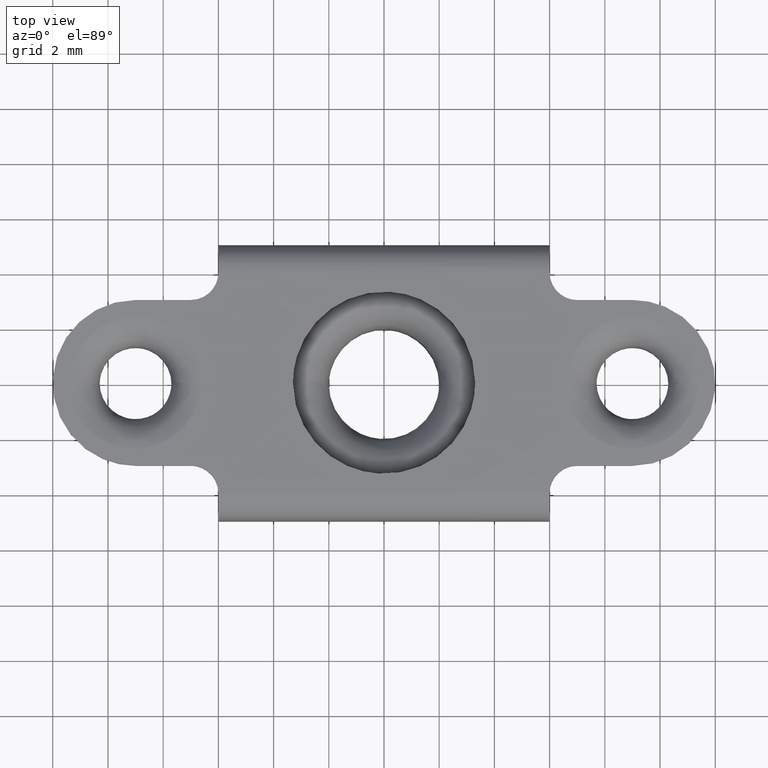
[diagram: clean part render]
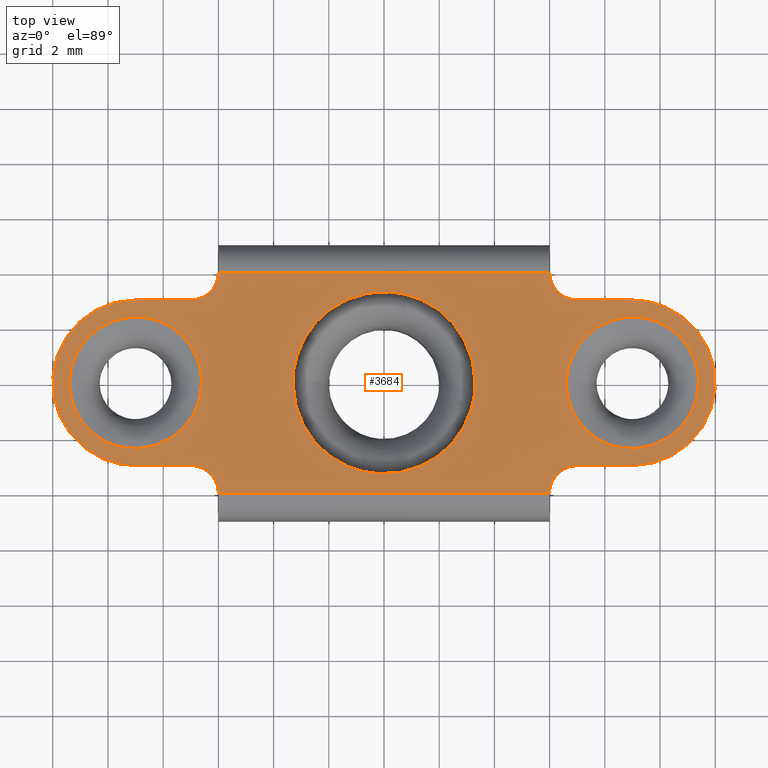
[diagram: same view with one face highlighted and labeled with its STEP entity id]
A machine part, top view. The second image highlights one B-rep face of the part: STEP entity #3684.
In plain terms, the highlighted face is a freeform B-spline surface patch.
Its self-contained STEP definition (entity closure, byte-faithful):
#2180=CARTESIAN_POINT('',(-0.201456841759438,-3.293845038992745,-1.474515E-017));
#2181=VERTEX_POINT('',#2180);
#2187=CARTESIAN_POINT('',(3.300000000000000,0.0,0.0));
#2188=VERTEX_POINT('',#2187);
#2189=CARTESIAN_POINT('',(-0.201456841759438,-3.293845038992746,-1.474515E-017));
#2190=CARTESIAN_POINT('',(-0.100822444851873,-3.299999999998332,-1.453326E-017));
#2191=CARTESIAN_POINT('',(1.003244E-013,-3.299999999998358,-1.430801E-017));
#2192=CARTESIAN_POINT('',(3.300000000000048,-3.299999999999204,-6.935433E-018));
#2193=CARTESIAN_POINT('',(3.300000000000000,0.0,0.0));
#2201=(BOUNDED_CURVE()B_SPLINE_CURVE(2,(#2189,#2190,#2191,#2192,#2193),.UNSPECIFIED.,.F.,.U.)B_SPLINE_CURVE_WITH_KNOTS((3,2,3),(0.239333137138794,0.250000000000000,0.500000000000000),.UNSPECIFIED.)CURVE()GEOMETRIC_REPRESENTATION_ITEM()RATIONAL_B_SPLINE_CURVE((0.976072416510679,0.987502992807759,1.0,0.707106781186548,1.0))REPRESENTATION_ITEM(''));
#2202=EDGE_CURVE('',#2181,#2188,#2201,.T.);
#2204=CARTESIAN_POINT('',(0.201456841759439,3.293845038992745,-1.474515E-017));
#2205=VERTEX_POINT('',#2204);
#2206=CARTESIAN_POINT('',(3.300000000000000,0.0,0.0));
#2207=CARTESIAN_POINT('',(3.299999999999949,3.104333173278948,-7.372575E-018));
#2208=CARTESIAN_POINT('',(0.201456841759439,3.293845038992746,-1.474515E-017));
#2216=(BOUNDED_CURVE()B_SPLINE_CURVE(2,(#2206,#2207,#2208),.UNSPECIFIED.,.F.,.U.)B_SPLINE_CURVE_WITH_KNOTS((3,3),(0.500000000000000,0.739333137138794),.UNSPECIFIED.)CURVE()GEOMETRIC_REPRESENTATION_ITEM()RATIONAL_B_SPLINE_CURVE((1.0,0.719603788378788,0.976072416510679))REPRESENTATION_ITEM(''));
#2217=EDGE_CURVE('',#2188,#2205,#2216,.T.);
#2291=CARTESIAN_POINT('',(-3.300000000000000,0.0,0.0));
#2292=VERTEX_POINT('',#2291);
#2293=CARTESIAN_POINT('',(0.201456841759439,3.293845038992746,-1.474515E-017));
#2294=CARTESIAN_POINT('',(0.100822444851874,3.299999999998332,-1.453326E-017));
#2295=CARTESIAN_POINT('',(-9.989346E-014,3.299999999998358,-1.430801E-017));
#2296=CARTESIAN_POINT('',(-3.300000000000048,3.299999999999204,-6.935433E-018));
#2297=CARTESIAN_POINT('',(-3.300000000000000,0.0,0.0));
#2305=(BOUNDED_CURVE()B_SPLINE_CURVE(2,(#2293,#2294,#2295,#2296,#2297),.UNSPECIFIED.,.F.,.U.)B_SPLINE_CURVE_WITH_KNOTS((3,2,3),(0.739333137138794,0.750000000000000,1.0),.UNSPECIFIED.)CURVE()GEOMETRIC_REPRESENTATION_ITEM()RATIONAL_B_SPLINE_CURVE((0.976072416510679,0.987502992807759,1.0,0.707106781186548,1.0))REPRESENTATION_ITEM(''));
#2306=EDGE_CURVE('',#2205,#2292,#2305,.T.);
#2308=CARTESIAN_POINT('',(-3.300000000000000,0.0,0.0));
#2309=CARTESIAN_POINT('',(-3.299999999999947,-3.104333173278948,-7.372575E-018));
#2310=CARTESIAN_POINT('',(-0.201456841759438,-3.293845038992746,-1.474515E-017));
#2318=(BOUNDED_CURVE()B_SPLINE_CURVE(2,(#2308,#2309,#2310),.UNSPECIFIED.,.F.,.U.)B_SPLINE_CURVE_WITH_KNOTS((3,3),(0.0,0.239333137138794),.UNSPECIFIED.)CURVE()GEOMETRIC_REPRESENTATION_ITEM()RATIONAL_B_SPLINE_CURVE((1.0,0.719603788378788,0.976072416510679))REPRESENTATION_ITEM(''));
#2319=EDGE_CURVE('',#2292,#2181,#2318,.T.);
#2348=CARTESIAN_POINT('',(-6.600192010642517,0.030158751653222,-4.531109E-012));
#2349=VERTEX_POINT('',#2348);
#2365=CARTESIAN_POINT('',(-11.399807912155650,-0.030157747322666,-6.160526E-012));
#2366=VERTEX_POINT('',#2365);
#2380=CARTESIAN_POINT('',(-6.600192010642517,0.030158751653222,-4.531109E-012));
#2381=CARTESIAN_POINT('',(-6.600150175629584,-0.165408385661977,-4.531512E-012));
#2382=CARTESIAN_POINT('',(-6.638643651623883,-0.478271487911905,-4.545247E-012));
#2383=CARTESIAN_POINT('',(-6.791403969808117,-0.944080983299107,-4.598097E-012));
#2384=CARTESIAN_POINT('',(-7.017317355609770,-1.358693511639949,-4.675670E-012));
#2385=CARTESIAN_POINT('',(-7.314678833410711,-1.699742079418912,-4.777340E-012));
#2386=CARTESIAN_POINT('',(-7.618332324565074,-1.947416954601699,-4.880947E-012));
#2387=CARTESIAN_POINT('',(-7.952434903257162,-2.152777208822213,-4.994801E-012));
#2388=CARTESIAN_POINT('',(-8.337761753870371,-2.301812687085866,-5.125922E-012));
#2389=CARTESIAN_POINT('',(-8.713502714437427,-2.372718473303340,-5.253623E-012));
#2390=CARTESIAN_POINT('',(-9.055667267851662,-2.392764655263927,-5.369818E-012));
#2391=CARTESIAN_POINT('',(-9.398005571902393,-2.364602938489676,-5.485969E-012));
#2392=CARTESIAN_POINT('',(-9.797865386015296,-2.266120159244065,-5.621496E-012));
#2393=CARTESIAN_POINT('',(-10.157752293694440,-2.108151567467771,-5.743327E-012));
#2394=CARTESIAN_POINT('',(-10.541690020586771,-1.853248284164708,-5.873116E-012));
#2395=CARTESIAN_POINT('',(-10.857474107746050,-1.542491097073451,-5.979650E-012));
#2396=CARTESIAN_POINT('',(-11.103129477419300,-1.175436128568858,-6.062257E-012));
#2397=CARTESIAN_POINT('',(-11.250169672197130,-0.854539324345202,-6.111488E-012));
#2398=CARTESIAN_POINT('',(-11.363895221494770,-0.479533124456400,-6.149293E-012));
#2399=CARTESIAN_POINT('',(-11.397626271079011,-0.206150915954410,-6.160161E-012));
#2400=CARTESIAN_POINT('',(-11.399807912155650,-0.030157747322666,-6.160526E-012));
#2401=B_SPLINE_CURVE_WITH_KNOTS('',3,(#2380,#2381,#2382,#2383,#2384,#2385,#2386,#2387,#2388,#2389,#2390,#2391,#2392,#2393,#2394,#2395,#2396,#2397,#2398,#2399,#2400),.UNSPECIFIED.,.F.,.U.,(4,1,1,1,1,1,1,1,1,1,1,1,1,1,1,1,1,1,4),(-0.000000038087336,0.586685371512398,0.938709550048737,1.466747486720615,1.994781536362128,2.288132707227289,2.640152916118813,3.168183178666578,3.520206823928977,3.784204514045672,4.194892411301849,4.546925011583410,5.016281978556274,5.368304238465075,5.925672346914411,6.336366425770015,6.688386279590131,6.981742781376743,7.509762331266924),.UNSPECIFIED.);
#2402=EDGE_CURVE('',#2349,#2366,#2401,.T.);
#2431=CARTESIAN_POINT('',(-11.399807912155650,-0.030157747322666,-6.160526E-012));
#2432=CARTESIAN_POINT('',(-11.399819742242700,0.106738825269386,-6.160238E-012));
#2433=CARTESIAN_POINT('',(-11.377992656158870,0.360961851683569,-6.152286E-012));
#2434=CARTESIAN_POINT('',(-11.269116314404251,0.798634090385464,-6.114393E-012));
#2435=CARTESIAN_POINT('',(-11.093513452667009,1.173224866903986,-6.053984E-012));
#2436=CARTESIAN_POINT('',(-10.854372787110091,1.508040496042999,-5.972090E-012));
#2437=CARTESIAN_POINT('',(-10.626351157443169,1.751190506261917,-5.894167E-012));
#2438=CARTESIAN_POINT('',(-10.350177511148910,1.970968075500040,-5.799948E-012));
#2439=CARTESIAN_POINT('',(-10.062021011532570,2.138553582022597,-5.701772E-012));
#2440=CARTESIAN_POINT('',(-9.736282394686432,2.273719726511100,-5.590908E-012));
#2441=CARTESIAN_POINT('',(-9.365214060263558,2.367480375185242,-5.464744E-012));
#2442=CARTESIAN_POINT('',(-8.944044472916284,2.397333714890798,-5.321709E-012));
#2443=CARTESIAN_POINT('',(-8.563463920485150,2.356606343863366,-5.192604E-012));
#2444=CARTESIAN_POINT('',(-8.222075183290988,2.268050676037066,-5.076904E-012));
#2445=CARTESIAN_POINT('',(-7.949904240166924,2.156482716384256,-4.984750E-012));
#2446=CARTESIAN_POINT('',(-7.676821443611128,2.002943599749996,-4.892376E-012));
#2447=CARTESIAN_POINT('',(-7.447982788972592,1.834165014571002,-4.815054E-012));
#2448=CARTESIAN_POINT('',(-7.186581314403568,1.583217064318870,-4.726854E-012));
#2449=CARTESIAN_POINT('',(-6.966114112531591,1.294131056507252,-4.652630E-012));
#2450=CARTESIAN_POINT('',(-6.794426552142534,0.963449641366111,-4.595054E-012));
#2451=CARTESIAN_POINT('',(-6.649202541767125,0.557588573890245,-4.546622E-012));
#2452=CARTESIAN_POINT('',(-6.602811678170877,0.245269138390881,-4.531540E-012));
#2453=CARTESIAN_POINT('',(-6.600192010642517,0.030158751653222,-4.531109E-012));
#2454=B_SPLINE_CURVE_WITH_KNOTS('',3,(#2431,#2432,#2433,#2434,#2435,#2436,#2437,#2438,#2439,#2440,#2441,#2442,#2443,#2444,#2445,#2446,#2447,#2448,#2449,#2450,#2451,#2452,#2453),.UNSPECIFIED.,.F.,.U.,(4,1,1,1,1,1,1,1,1,1,1,1,1,1,1,1,1,1,1,1,4),(-0.000000038101347,0.410688035940526,0.762707962024198,1.349406742319233,1.642759010162621,1.994781271477025,2.346803663476568,2.698825307904699,2.992180840099727,3.402867456204360,3.842871811771026,4.253562720035629,4.546924407659407,4.898941883220157,5.133620225337396,5.485644481984451,5.749662398651699,6.219024818056659,6.571050006959164,6.864398181111315,7.509761334154720),.UNSPECIFIED.);
#2455=EDGE_CURVE('',#2366,#2349,#2454,.T.);
#2492=CARTESIAN_POINT('',(11.399807989357480,0.030158751653222,-4.531102E-012));
#2493=VERTEX_POINT('',#2492);
#2509=CARTESIAN_POINT('',(6.600192087844351,-0.030157747322666,-6.160510E-012));
#2510=VERTEX_POINT('',#2509);
#2524=CARTESIAN_POINT('',(11.399807989357480,0.030158751653222,-4.531102E-012));
#2525=CARTESIAN_POINT('',(11.399820517946351,-0.106738153144451,-4.531389E-012));
#2526=CARTESIAN_POINT('',(11.377996921649689,-0.360963457554733,-4.539340E-012));
#2527=CARTESIAN_POINT('',(11.288018629776390,-0.722498652870449,-4.570655E-012));
#2528=CARTESIAN_POINT('',(11.124142038961610,-1.121559336176641,-4.627136E-012));
#2529=CARTESIAN_POINT('',(10.885237915652700,-1.483165761889710,-4.709006E-012));
#2530=CARTESIAN_POINT('',(10.541324353615559,-1.832504813951393,-4.826496E-012));
#2531=CARTESIAN_POINT('',(10.186988667869979,-2.081033810969334,-4.947309E-012));
#2532=CARTESIAN_POINT('',(9.792280489484272,-2.256138863776044,-5.081670E-012));
#2533=CARTESIAN_POINT('',(9.422725931126253,-2.354304693633667,-5.207329E-012));
#2534=CARTESIAN_POINT('',(9.022877958160901,-2.397399751062547,-5.343153E-012));
#2535=CARTESIAN_POINT('',(8.581821548256070,-2.366571788588698,-5.492808E-012));
#2536=CARTESIAN_POINT('',(8.164710428839543,-2.252899275643932,-5.634159E-012));
#2537=CARTESIAN_POINT('',(7.845093724116111,-2.103086033079469,-5.742336E-012));
#2538=CARTESIAN_POINT('',(7.579904904732623,-1.936278098160239,-5.832002E-012));
#2539=CARTESIAN_POINT('',(7.344481253135023,-1.744011050830961,-5.911509E-012));
#2540=CARTESIAN_POINT('',(7.085586382096626,-1.462800259707269,-5.998794E-012));
#2541=CARTESIAN_POINT('',(6.887100152378109,-1.158207203660429,-6.065522E-012));
#2542=CARTESIAN_POINT('',(6.744147298576400,-0.835786425875360,-6.113361E-012));
#2543=CARTESIAN_POINT('',(6.636107717935015,-0.479532869498657,-6.149277E-012));
#2544=CARTESIAN_POINT('',(6.602369334052349,-0.206151387894447,-6.160146E-012));
#2545=CARTESIAN_POINT('',(6.600192087844351,-0.030157747322666,-6.160510E-012));
#2546=B_SPLINE_CURVE_WITH_KNOTS('',3,(#2524,#2525,#2526,#2527,#2528,#2529,#2530,#2531,#2532,#2533,#2534,#2535,#2536,#2537,#2538,#2539,#2540,#2541,#2542,#2543,#2544,#2545),.UNSPECIFIED.,.F.,.U.,(4,1,1,1,1,1,1,1,1,1,1,1,1,1,1,1,1,1,1,4),(-0.000000038125453,0.410688090351623,0.762708063156981,1.114729205296134,1.701431011919818,2.053452509770076,2.581486680580021,2.992181237500775,3.344197252358811,3.725554424054393,4.194892411285826,4.664257983655497,5.016281978544666,5.250965654325047,5.602987043826619,5.925672346907250,6.395039221752329,6.688386279586506,6.981742781374463,7.509762331267048),.UNSPECIFIED.);
#2547=EDGE_CURVE('',#2493,#2510,#2546,.T.);
#2582=CARTESIAN_POINT('',(6.600192087844351,-0.030157747322666,-6.160510E-012));
#2583=CARTESIAN_POINT('',(6.600179587439456,0.106738870355552,-6.160222E-012));
#2584=CARTESIAN_POINT('',(6.622009607888787,0.360961369505433,-6.152270E-012));
#2585=CARTESIAN_POINT('',(6.730880205632179,0.798635095760323,-6.114379E-012));
#2586=CARTESIAN_POINT('',(6.914853858477652,1.191061824729860,-6.051090E-012));
#2587=CARTESIAN_POINT('',(7.169817059387417,1.539038504886130,-5.963798E-012));
#2588=CARTESIAN_POINT('',(7.472415359887238,1.846496806609854,-5.860422E-012));
#2589=CARTESIAN_POINT('',(7.862766574985205,2.113273377714289,-5.727344E-012));
#2590=CARTESIAN_POINT('',(8.355219276372532,2.310642943641280,-5.559755E-012));
#2591=CARTESIAN_POINT('',(8.868669576903990,2.401163731639308,-5.385266E-012));
#2592=CARTESIAN_POINT('',(9.350410731503205,2.376352810290735,-5.221787E-012));
#2593=CARTESIAN_POINT('',(9.740737041755532,2.280174192089251,-5.089491E-012));
#2594=CARTESIAN_POINT('',(10.032251105250589,2.164843425641088,-4.990780E-012));
#2595=CARTESIAN_POINT('',(10.341797643133431,1.995813419603404,-4.886062E-012));
#2596=CARTESIAN_POINT('',(10.628972218464050,1.772865856672125,-4.789053E-012));
#2597=CARTESIAN_POINT('',(10.914411031974099,1.462799841821545,-4.692819E-012));
#2598=CARTESIAN_POINT('',(11.134362362578941,1.125278626518163,-4.618874E-012));
#2599=CARTESIAN_POINT('',(11.284602654225170,0.762575529075881,-4.568647E-012));
#2600=CARTESIAN_POINT('',(11.374999905100481,0.401444652395939,-4.538731E-012));
#2601=CARTESIAN_POINT('',(11.398100820304609,0.167039888973427,-4.531389E-012));
#2602=CARTESIAN_POINT('',(11.399807989357480,0.030158751653222,-4.531102E-012));
#2603=B_SPLINE_CURVE_WITH_KNOTS('',3,(#2582,#2583,#2584,#2585,#2586,#2587,#2588,#2589,#2590,#2591,#2592,#2593,#2594,#2595,#2596,#2597,#2598,#2599,#2600,#2601,#2602),.UNSPECIFIED.,.F.,.U.,(4,1,1,1,1,1,1,1,1,1,1,1,1,1,1,1,1,1,4),(-0.000000038133636,0.410688035909781,0.762707961994767,1.349406742292067,1.701430786037149,2.053452237137054,2.640152565389487,3.109515859231629,3.637541941518982,4.194891854366622,4.546924407645888,4.840268378856311,5.133620225326704,5.602986299882413,5.925671560132549,6.395038372647935,6.805725415046360,7.099083697463812,7.509761334154718),.UNSPECIFIED.);
#2604=EDGE_CURVE('',#2510,#2493,#2603,.T.);
#3069=CARTESIAN_POINT('',(6.0,-4.0,0.0));
#3070=VERTEX_POINT('',#3069);
#3184=CARTESIAN_POINT('',(7.0,-3.0,0.0));
#3185=VERTEX_POINT('',#3184);
#3186=CARTESIAN_POINT('',(7.0,-3.0,0.0));
#3187=CARTESIAN_POINT('',(6.0,-3.0,0.0));
#3188=CARTESIAN_POINT('',(6.0,-4.0,0.0));
#3196=(BOUNDED_CURVE()B_SPLINE_CURVE(2,(#3186,#3187,#3188),.UNSPECIFIED.,.F.,.U.)CURVE()GEOMETRIC_REPRESENTATION_ITEM()QUASI_UNIFORM_CURVE()RATIONAL_B_SPLINE_CURVE((1.0,0.707106781186548,1.0))REPRESENTATION_ITEM(''));
#3197=EDGE_CURVE('',#3185,#3070,#3196,.T.);
#3228=CARTESIAN_POINT('',(9.0,-3.0,0.0));
#3229=VERTEX_POINT('',#3228);
#3230=CARTESIAN_POINT('',(9.0,-3.0,0.0));
#3231=CARTESIAN_POINT('',(7.0,-3.0,0.0));
#3232=QUASI_UNIFORM_CURVE('',1,(#3230,#3231),.UNSPECIFIED.,.F.,.U.);
#3233=EDGE_CURVE('',#3229,#3185,#3232,.T.);
#3269=CARTESIAN_POINT('',(9.0,2.999999999999945,0.0));
#3270=VERTEX_POINT('',#3269);
#3271=CARTESIAN_POINT('',(9.0,-3.0,0.0));
#3272=CARTESIAN_POINT('',(9.190212377397486,-3.000022561549962,0.0));
#3273=CARTESIAN_POINT('',(9.546086235474839,-2.966037309001817,0.0));
#3274=CARTESIAN_POINT('',(9.984823662637597,-2.843175068075536,0.0));
#3275=CARTESIAN_POINT('',(10.351839167366540,-2.685838201066785,0.0));
#3276=CARTESIAN_POINT('',(10.666446108255540,-2.505064051120522,0.0));
#3277=CARTESIAN_POINT('',(10.988653625211770,-2.258347886921962,0.0));
#3278=CARTESIAN_POINT('',(11.248825171944860,-1.996571597870668,0.0));
#3279=CARTESIAN_POINT('',(11.483160736109030,-1.696299050070599,0.0));
#3280=CARTESIAN_POINT('',(11.673875739460660,-1.380317265041380,0.0));
#3281=CARTESIAN_POINT('',(11.822700862668871,-1.036037221733710,0.0));
#3282=CARTESIAN_POINT('',(11.933933464201891,-0.665272936669640,0.0));
#3283=CARTESIAN_POINT('',(11.998691907847361,-0.270547050113906,0.0));
#3284=CARTESIAN_POINT('',(12.005767766333950,0.190736825983066,0.0));
#3285=CARTESIAN_POINT('',(11.942224089352710,0.648112798838317,0.0));
#3286=CARTESIAN_POINT('',(11.788853396325599,1.148218592394506,0.0));
#3287=CARTESIAN_POINT('',(11.548863902117960,1.614291847220684,0.0));
#3288=CARTESIAN_POINT('',(11.262083063817199,1.984051096342723,0.0));
#3289=CARTESIAN_POINT('',(10.964883548365140,2.277627025517279,0.0));
#3290=CARTESIAN_POINT('',(10.613090778852660,2.547017462506028,0.0));
#3291=CARTESIAN_POINT('',(10.187018759304159,2.769736937980233,0.0));
#3292=CARTESIAN_POINT('',(9.638096819344344,2.951065530115893,0.0));
#3293=CARTESIAN_POINT('',(9.251578615498373,3.000078907770109,0.0));
#3294=CARTESIAN_POINT('',(9.0,2.999999999999945,0.0));
#3295=B_SPLINE_CURVE_WITH_KNOTS('',3,(#3271,#3272,#3273,#3274,#3275,#3276,#3277,#3278,#3279,#3280,#3281,#3282,#3283,#3284,#3285,#3286,#3287,#3288,#3289,#3290,#3291,#3292,#3293,#3294),.UNSPECIFIED.,.F.,.U.,(4,1,1,1,1,1,1,1,1,1,1,1,1,1,1,1,1,1,1,1,1,4),(0.000000051297361,0.570632844650556,1.067649495760135,1.362170766423464,1.767143921654417,2.153712370359364,2.577094063821019,2.871619431529426,3.295003918328207,3.681569823035970,3.994499261573134,4.454696280263794,4.878057214820601,5.375072360973734,5.835263321546471,6.442726966282695,6.939739708086467,7.234265327737351,7.694464564902242,8.265106565772838,8.670084713013232,9.424792745516921),.UNSPECIFIED.);
#3296=EDGE_CURVE('',#3229,#3270,#3295,.T.);
#3340=CARTESIAN_POINT('',(7.0,2.999999999999945,0.0));
#3341=VERTEX_POINT('',#3340);
#3342=CARTESIAN_POINT('',(7.0,2.999999999999945,0.0));
#3343=CARTESIAN_POINT('',(9.0,2.999999999999945,0.0));
#3344=QUASI_UNIFORM_CURVE('',1,(#3342,#3343),.UNSPECIFIED.,.F.,.U.);
#3345=EDGE_CURVE('',#3341,#3270,#3344,.T.);
#3377=CARTESIAN_POINT('',(6.0,3.999999999999945,0.0));
#3378=VERTEX_POINT('',#3377);
#3379=CARTESIAN_POINT('',(6.0,3.999999999999945,0.0));
#3380=CARTESIAN_POINT('',(6.0,2.999999999999945,0.0));
#3381=CARTESIAN_POINT('',(7.0,2.999999999999945,0.0));
#3389=(BOUNDED_CURVE()B_SPLINE_CURVE(2,(#3379,#3380,#3381),.UNSPECIFIED.,.F.,.U.)CURVE()GEOMETRIC_REPRESENTATION_ITEM()QUASI_UNIFORM_CURVE()RATIONAL_B_SPLINE_CURVE((1.0,0.707106781186548,1.0))REPRESENTATION_ITEM(''));
#3390=EDGE_CURVE('',#3378,#3341,#3389,.T.);
#3574=CARTESIAN_POINT('',(-13.198799953483320,4.399599984494391,0.0));
#3575=CARTESIAN_POINT('',(13.198800597213490,4.399599984494391,0.0));
#3576=CARTESIAN_POINT('',(-13.198799953483320,-4.399600199071166,0.0));
#3577=CARTESIAN_POINT('',(13.198800597213490,-4.399600199071166,0.0));
#3578=B_SPLINE_SURFACE_WITH_KNOTS('',1,1,((#3574,#3576),(#3575,#3577)),.UNSPECIFIED.,.F.,.F.,.U.,(2,2),(2,2),(0.0,26.397600550696811),(0.0,8.799200183565556),.UNSPECIFIED.);
#3579=ORIENTED_EDGE('',*,*,#3390,.F.);
#3580=CARTESIAN_POINT('',(-6.0,3.999999999999945,0.0));
#3581=VERTEX_POINT('',#3580);
#3582=CARTESIAN_POINT('',(6.0,3.999999999999945,0.0));
#3583=CARTESIAN_POINT('',(-6.0,3.999999999999945,0.0));
#3584=QUASI_UNIFORM_CURVE('',1,(#3582,#3583),.UNSPECIFIED.,.F.,.U.);
#3585=EDGE_CURVE('',#3378,#3581,#3584,.T.);
#3586=ORIENTED_EDGE('',*,*,#3585,.T.);
#3587=CARTESIAN_POINT('',(-7.0,2.999999999999945,0.0));
#3588=VERTEX_POINT('',#3587);
#3589=CARTESIAN_POINT('',(-7.0,2.999999999999945,0.0));
#3590=CARTESIAN_POINT('',(-6.0,2.999999999999945,0.0));
#3591=CARTESIAN_POINT('',(-6.0,3.999999999999945,0.0));
#3599=(BOUNDED_CURVE()B_SPLINE_CURVE(2,(#3589,#3590,#3591),.UNSPECIFIED.,.F.,.U.)CURVE()GEOMETRIC_REPRESENTATION_ITEM()QUASI_UNIFORM_CURVE()RATIONAL_B_SPLINE_CURVE((1.0,0.707106781186548,1.0))REPRESENTATION_ITEM(''));
#3600=EDGE_CURVE('',#3588,#3581,#3599,.T.);
#3601=ORIENTED_EDGE('',*,*,#3600,.F.);
#3602=CARTESIAN_POINT('',(-9.0,3.0,0.0));
#3603=VERTEX_POINT('',#3602);
#3604=CARTESIAN_POINT('',(-9.0,3.0,0.0));
#3605=CARTESIAN_POINT('',(-7.0,2.999999999999945,0.0));
#3606=QUASI_UNIFORM_CURVE('',1,(#3604,#3605),.UNSPECIFIED.,.F.,.U.);
#3607=EDGE_CURVE('',#3603,#3588,#3606,.T.);
#3608=ORIENTED_EDGE('',*,*,#3607,.F.);
#3609=CARTESIAN_POINT('',(-9.0,-3.0,0.0));
#3610=VERTEX_POINT('',#3609);
#3611=CARTESIAN_POINT('',(-9.0,3.0,0.0));
#3612=CARTESIAN_POINT('',(-9.190211962758822,3.000022158416447,0.0));
#3613=CARTESIAN_POINT('',(-9.521542086243869,2.968375042355586,0.0));
#3614=CARTESIAN_POINT('',(-10.044557409880751,2.828833149001514,0.0));
#3615=CARTESIAN_POINT('',(-10.503190224017210,2.615347255855744,0.0));
#3616=CARTESIAN_POINT('',(-10.934950801000520,2.309261960977310,0.0));
#3617=CARTESIAN_POINT('',(-11.233709903781090,2.015946768548931,0.0));
#3618=CARTESIAN_POINT('',(-11.513403040226221,1.657558860800808,0.0));
#3619=CARTESIAN_POINT('',(-11.763903343884870,1.218572670643179,0.0));
#3620=CARTESIAN_POINT('',(-11.928826448055361,0.714107210927787,0.0));
#3621=CARTESIAN_POINT('',(-12.002766270221560,0.215469325474600,0.0));
#3622=CARTESIAN_POINT('',(-12.004137474226850,-0.227825087860806,0.0));
#3623=CARTESIAN_POINT('',(-11.937959695018490,-0.647256394400434,0.0));
#3624=CARTESIAN_POINT('',(-11.825546850573559,-1.030494159977432,0.0));
#3625=CARTESIAN_POINT('',(-11.688859396605910,-1.346682481106377,0.0));
#3626=CARTESIAN_POINT('',(-11.484696805764241,-1.696994691818837,0.0));
#3627=CARTESIAN_POINT('',(-11.262087219116321,-1.984053082938349,0.0));
#3628=CARTESIAN_POINT('',(-10.964882826741229,-2.277625987358010,0.0));
#3629=CARTESIAN_POINT('',(-10.613092558825510,-2.547020461645103,0.0));
#3630=CARTESIAN_POINT('',(-10.187017541759881,-2.769734556355800,0.0));
#3631=CARTESIAN_POINT('',(-9.638097418487389,-2.951066858539532,0.0));
#3632=CARTESIAN_POINT('',(-9.251578525091594,-3.000078613527415,0.0));
#3633=CARTESIAN_POINT('',(-9.0,-3.0,0.0));
#3634=B_SPLINE_CURVE_WITH_KNOTS('',3,(#3611,#3612,#3613,#3614,#3615,#3616,#3617,#3618,#3619,#3620,#3621,#3622,#3623,#3624,#3625,#3626,#3627,#3628,#3629,#3630,#3631,#3632,#3633),.UNSPECIFIED.,.F.,.U.,(4,1,1,1,1,1,1,1,1,1,1,1,1,1,1,1,1,1,1,1,4),(0.000000051297363,0.570632844650556,0.994020709083747,1.619880383730933,2.080081114360370,2.577094063821019,2.871619431529427,3.442263794619964,4.086545303818801,4.454696280263794,4.951681822977195,5.411884980332189,5.724819065530008,6.148204396191856,6.442726966282695,6.939739708086467,7.234265327737351,7.694464564902242,8.265106565772838,8.670084713013232,9.424792745516921),.UNSPECIFIED.);
#3635=EDGE_CURVE('',#3603,#3610,#3634,.T.);
#3636=ORIENTED_EDGE('',*,*,#3635,.T.);
#3637=CARTESIAN_POINT('',(-7.0,-3.0,0.0));
#3638=VERTEX_POINT('',#3637);
#3639=CARTESIAN_POINT('',(-7.0,-3.0,0.0));
#3640=CARTESIAN_POINT('',(-9.0,-3.0,0.0));
#3641=QUASI_UNIFORM_CURVE('',1,(#3639,#3640),.UNSPECIFIED.,.F.,.U.);
#3642=EDGE_CURVE('',#3638,#3610,#3641,.T.);
#3643=ORIENTED_EDGE('',*,*,#3642,.F.);
#3644=CARTESIAN_POINT('',(-6.0,-4.0,0.0));
#3645=VERTEX_POINT('',#3644);
#3646=CARTESIAN_POINT('',(-6.0,-4.0,0.0));
#3647=CARTESIAN_POINT('',(-6.0,-3.0,0.0));
#3648=CARTESIAN_POINT('',(-7.0,-3.0,0.0));
#3656=(BOUNDED_CURVE()B_SPLINE_CURVE(2,(#3646,#3647,#3648),.UNSPECIFIED.,.F.,.U.)CURVE()GEOMETRIC_REPRESENTATION_ITEM()QUASI_UNIFORM_CURVE()RATIONAL_B_SPLINE_CURVE((1.0,0.707106781186548,1.0))REPRESENTATION_ITEM(''));
#3657=EDGE_CURVE('',#3645,#3638,#3656,.T.);
#3658=ORIENTED_EDGE('',*,*,#3657,.F.);
#3659=CARTESIAN_POINT('',(-6.0,-4.0,0.0));
#3660=CARTESIAN_POINT('',(6.0,-4.0,0.0));
#3661=QUASI_UNIFORM_CURVE('',1,(#3659,#3660),.UNSPECIFIED.,.F.,.U.);
#3662=EDGE_CURVE('',#3645,#3070,#3661,.T.);
#3663=ORIENTED_EDGE('',*,*,#3662,.T.);
#3664=ORIENTED_EDGE('',*,*,#3197,.F.);
#3665=ORIENTED_EDGE('',*,*,#3233,.F.);
#3666=ORIENTED_EDGE('',*,*,#3296,.T.);
#3667=ORIENTED_EDGE('',*,*,#3345,.F.);
#3668=EDGE_LOOP('',(#3579,#3586,#3601,#3608,#3636,#3643,#3658,#3663,#3664,#3665,#3666,#3667));
#3669=FACE_OUTER_BOUND('',#3668,.T.);
#3670=ORIENTED_EDGE('',*,*,#2604,.T.);
#3671=ORIENTED_EDGE('',*,*,#2547,.T.);
#3672=EDGE_LOOP('',(#3670,#3671));
#3673=FACE_BOUND('',#3672,.T.);
#3674=ORIENTED_EDGE('',*,*,#2455,.T.);
#3675=ORIENTED_EDGE('',*,*,#2402,.T.);
#3676=EDGE_LOOP('',(#3674,#3675));
#3677=FACE_BOUND('',#3676,.T.);
#3678=ORIENTED_EDGE('',*,*,#2217,.F.);
#3679=ORIENTED_EDGE('',*,*,#2202,.F.);
#3680=ORIENTED_EDGE('',*,*,#2319,.F.);
#3681=ORIENTED_EDGE('',*,*,#2306,.F.);
#3682=EDGE_LOOP('',(#3678,#3679,#3680,#3681));
#3683=FACE_BOUND('',#3682,.T.);
#3684=ADVANCED_FACE('',(#3669,#3673,#3677,#3683),#3578,.F.);